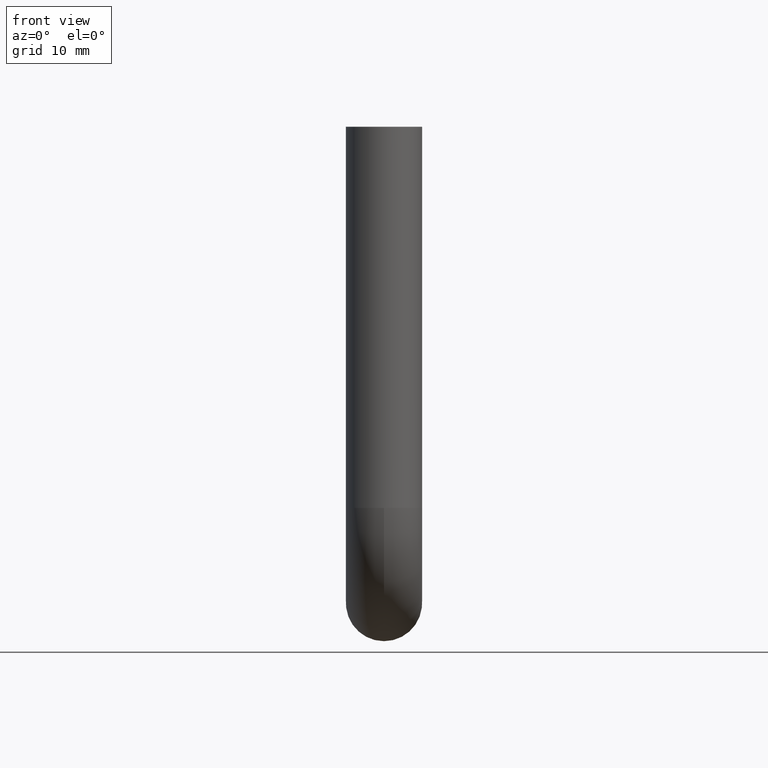
[diagram: clean part render]
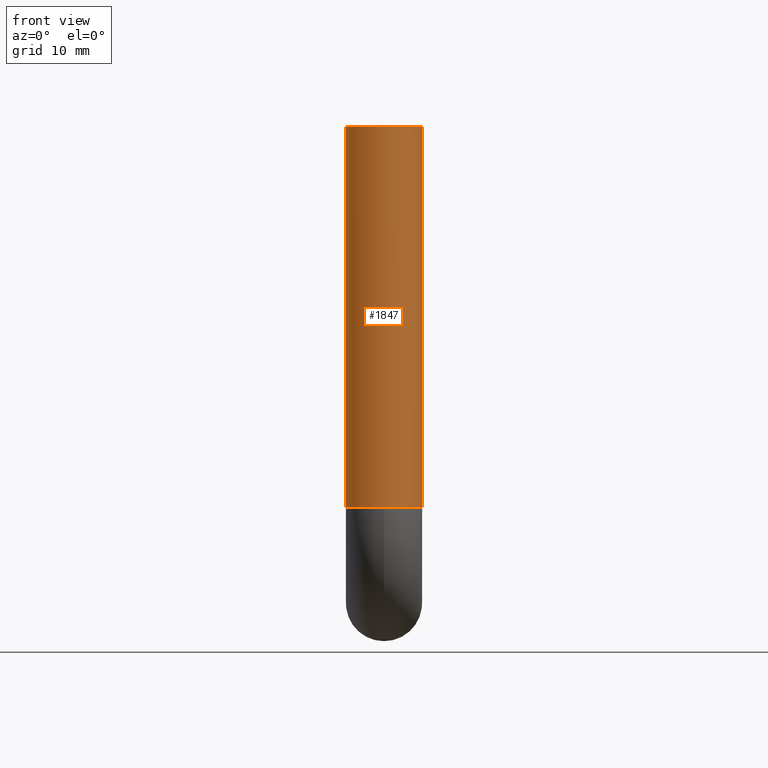
[diagram: same view with one face highlighted and labeled with its STEP entity id]
A machine part, front view. The second image highlights one B-rep face of the part: STEP entity #1847.
In plain terms, the highlighted cylindrical surface (partial cylindrical patch) has radius 6 mm, axis along (-0, -0, 1).
Its self-contained STEP definition (entity closure, byte-faithful):
#44 = LINE ( 'NONE', #1518, #11654 ) ;
#152 = AXIS2_PLACEMENT_3D ( 'NONE', #11921, #2613, #1579 ) ;
#173 = CARTESIAN_POINT ( 'NONE',  ( -6.000000000000000888, 7.347880794884120722E-16, 0.000000000000000000 ) ) ;
#292 = DIRECTION ( 'NONE',  ( 1.000000000000000000, 0.000000000000000000, 0.000000000000000000 ) ) ;
#529 = DIRECTION ( 'NONE',  ( -0.000000000000000000, -0.000000000000000000, 1.000000000000000000 ) ) ;
#1432 = CARTESIAN_POINT ( 'NONE',  ( 6.000000000000000888, 0.000000000000000000, -60.00000000000000000 ) ) ;
#1518 = CARTESIAN_POINT ( 'NONE',  ( 6.000000000000000888, 0.000000000000000000, -60.00000000000000000 ) ) ;
#1546 = ORIENTED_EDGE ( 'NONE', *, *, #3648, .T. ) ;
#1579 = DIRECTION ( 'NONE',  ( 1.000000000000000000, 0.000000000000000000, 0.000000000000000000 ) ) ;
#1608 = DIRECTION ( 'NONE',  ( -0.000000000000000000, -0.000000000000000000, 1.000000000000000000 ) ) ;
#1664 = LINE ( 'NONE', #4878, #7075 ) ;
#1847 = ADVANCED_FACE ( 'NONE', ( #11260 ), #7562, .T. ) ;
#2096 = DIRECTION ( 'NONE',  ( 0.000000000000000000, 0.000000000000000000, 1.000000000000000000 ) ) ;
#2613 = DIRECTION ( 'NONE',  ( 0.000000000000000000, 0.000000000000000000, 1.000000000000000000 ) ) ;
#3135 = ORIENTED_EDGE ( 'NONE', *, *, #10404, .T. ) ;
#3648 = EDGE_CURVE ( 'NONE', #4515, #5776, #3664, .T. ) ;
#3664 = CIRCLE ( 'NONE', #4861, 6.000000000000000888 ) ;
#3838 = DIRECTION ( 'NONE',  ( -0.000000000000000000, -0.000000000000000000, 1.000000000000000000 ) ) ;
#4404 = EDGE_CURVE ( 'NONE', #4515, #9177, #1664, .T. ) ;
#4515 = VERTEX_POINT ( 'NONE', #5319 ) ;
#4530 = CIRCLE ( 'NONE', #152, 6.000000000000000888 ) ;
#4611 = CARTESIAN_POINT ( 'NONE',  ( 0.000000000000000000, 0.000000000000000000, -60.00000000000000000 ) ) ;
#4861 = AXIS2_PLACEMENT_3D ( 'NONE', #7782, #2096, #292 ) ;
#4878 = CARTESIAN_POINT ( 'NONE',  ( -6.000000000000000888, 7.347880794884120722E-16, -60.00000000000000000 ) ) ;
#4955 = VERTEX_POINT ( 'NONE', #1432 ) ;
#5209 = CARTESIAN_POINT ( 'NONE',  ( 6.000000000000000888, 0.000000000000000000, 0.000000000000000000 ) ) ;
#5319 = CARTESIAN_POINT ( 'NONE',  ( -6.000000000000000888, 7.347880794884120722E-16, -60.00000000000000000 ) ) ;
#5776 = VERTEX_POINT ( 'NONE', #5889 ) ;
#5889 = CARTESIAN_POINT ( 'NONE',  ( 0.000000000000000000, -6.000000000000001776, -60.00000000000000000 ) ) ;
#5996 = CIRCLE ( 'NONE', #8486, 6.000000000000000888 ) ;
#6173 = EDGE_CURVE ( 'NONE', #4955, #9867, #44, .T. ) ;
#7075 = VECTOR ( 'NONE', #3838, 1000.000000000000000 ) ;
#7267 = ORIENTED_EDGE ( 'NONE', *, *, #4404, .F. ) ;
#7562 = CYLINDRICAL_SURFACE ( 'NONE', #9474, 6.000000000000000888 ) ;
#7782 = CARTESIAN_POINT ( 'NONE',  ( 0.000000000000000000, 0.000000000000000000, -60.00000000000000000 ) ) ;
#8486 = AXIS2_PLACEMENT_3D ( 'NONE', #10537, #10660, #10700 ) ;
#8526 = ORIENTED_EDGE ( 'NONE', *, *, #6173, .T. ) ;
#8569 = EDGE_LOOP ( 'NONE', ( #7267, #1546, #3135, #8526, #11939 ) ) ;
#9177 = VERTEX_POINT ( 'NONE', #173 ) ;
#9238 = DIRECTION ( 'NONE',  ( 1.000000000000000000, 0.000000000000000000, 0.000000000000000000 ) ) ;
#9474 = AXIS2_PLACEMENT_3D ( 'NONE', #4611, #1608, #9238 ) ;
#9867 = VERTEX_POINT ( 'NONE', #5209 ) ;
#10404 = EDGE_CURVE ( 'NONE', #5776, #4955, #5996, .T. ) ;
#10537 = CARTESIAN_POINT ( 'NONE',  ( 0.000000000000000000, 0.000000000000000000, -60.00000000000000000 ) ) ;
#10544 = EDGE_CURVE ( 'NONE', #9177, #9867, #4530, .T. ) ;
#10660 = DIRECTION ( 'NONE',  ( 0.000000000000000000, 0.000000000000000000, 1.000000000000000000 ) ) ;
#10700 = DIRECTION ( 'NONE',  ( 1.000000000000000000, 0.000000000000000000, 0.000000000000000000 ) ) ;
#11260 = FACE_OUTER_BOUND ( 'NONE', #8569, .T. ) ;
#11654 = VECTOR ( 'NONE', #529, 1000.000000000000000 ) ;
#11921 = CARTESIAN_POINT ( 'NONE',  ( -0.000000000000000000, 0.000000000000000000, 0.000000000000000000 ) ) ;
#11939 = ORIENTED_EDGE ( 'NONE', *, *, #10544, .F. ) ;